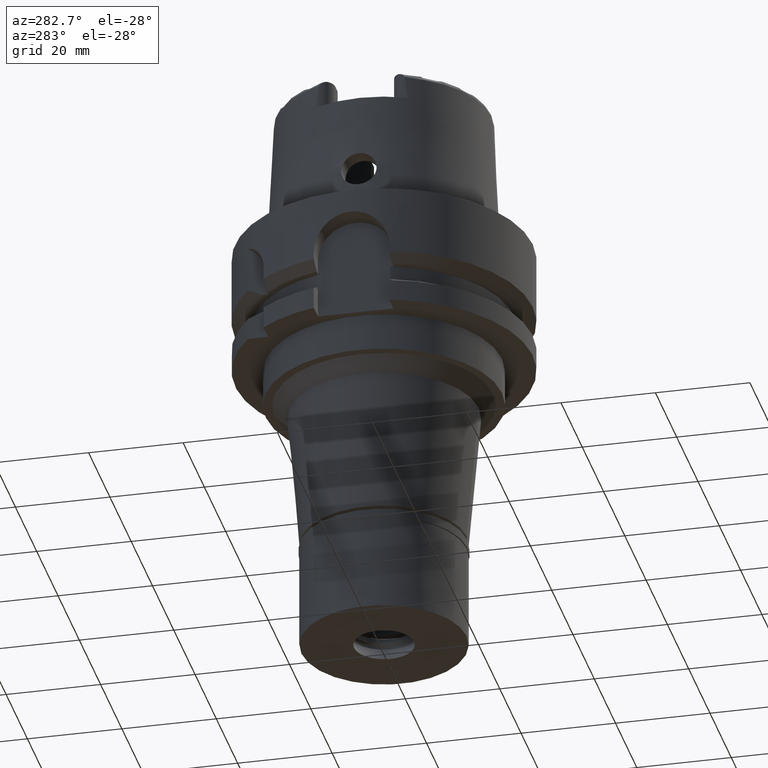
[diagram: clean part render]
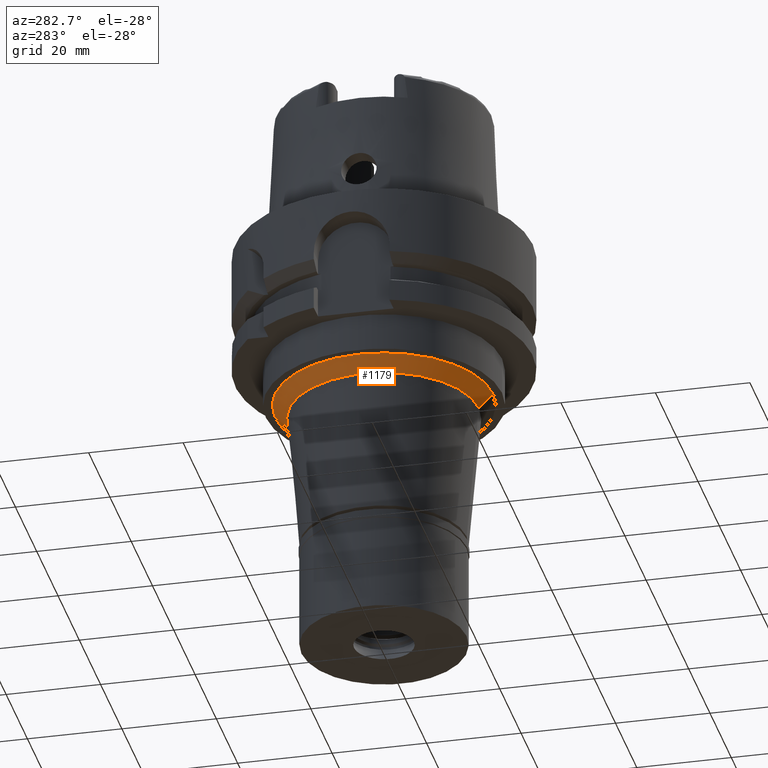
[diagram: same view with one face highlighted and labeled with its STEP entity id]
A machine part, auxiliary view. The second image highlights one B-rep face of the part: STEP entity #1179.
In plain terms, the highlighted conical surface has half-angle 45 deg.
Its self-contained STEP definition (entity closure, byte-faithful):
#329 = EDGE_CURVE ( 'NONE', #1192, #3920, #2561, .T. ) ;
#488 = EDGE_CURVE ( 'NONE', #3711, #540, #3921, .T. ) ;
#526 = DIRECTION ( 'NONE',  ( 0.0000000000000000000, 0.0000000000000000000, 1.000000000000000000 ) ) ;
#540 = VERTEX_POINT ( 'NONE', #4066 ) ;
#569 = CARTESIAN_POINT ( 'NONE',  ( 0.0000000000000000000, -23.09841330671999771, -34.00000000000000000 ) ) ;
#1054 = DIRECTION ( 'NONE',  ( 0.0000000000000000000, -1.000000000000000000, 0.0000000000000000000 ) ) ;
#1177 = EDGE_CURVE ( 'NONE', #540, #3920, #2424, .T. ) ;
#1179 = ADVANCED_FACE ( 'NONE', ( #4137 ), #1680, .T. ) ;
#1192 = VERTEX_POINT ( 'NONE', #2344 ) ;
#1353 = ORIENTED_EDGE ( 'NONE', *, *, #488, .F. ) ;
#1606 = AXIS2_PLACEMENT_3D ( 'NONE', #4461, #526, #3579 ) ;
#1680 = CONICAL_SURFACE ( 'NONE', #1606, 21.59841330672000126, 0.7853981633972997312 ) ;
#1832 = DIRECTION ( 'NONE',  ( 0.0000000000000000000, 0.0000000000000000000, -1.000000000000000000 ) ) ;
#2159 = EDGE_CURVE ( 'NONE', #3711, #1192, #2423, .T. ) ;
#2344 = CARTESIAN_POINT ( 'NONE',  ( 0.0000000000000000000, 23.09841330671999771, -34.00000000000000000 ) ) ;
#2423 = CIRCLE ( 'NONE', #3421, 23.09841330671999771 ) ;
#2424 = CIRCLE ( 'NONE', #5074, 20.09841330671999771 ) ;
#2561 = LINE ( 'NONE', #3483, #5508 ) ;
#2638 = DIRECTION ( 'NONE',  ( 0.0000000000000000000, 0.0000000000000000000, -1.000000000000000000 ) ) ;
#2663 = CARTESIAN_POINT ( 'NONE',  ( 0.0000000000000000000, 0.0000000000000000000, -34.00000000000000000 ) ) ;
#3028 = EDGE_LOOP ( 'NONE', ( #3926, #1353, #5124, #5109 ) ) ;
#3087 = DIRECTION ( 'NONE',  ( 0.0000000000000000000, -0.7071067811865975328, -0.7071067811864976127 ) ) ;
#3370 = CARTESIAN_POINT ( 'NONE',  ( 0.0000000000000000000, -23.09841330671999771, -34.00000000000000000 ) ) ;
#3421 = AXIS2_PLACEMENT_3D ( 'NONE', #2663, #2638, #3471 ) ;
#3471 = DIRECTION ( 'NONE',  ( 0.0000000000000000000, -1.000000000000000000, 0.0000000000000000000 ) ) ;
#3483 = CARTESIAN_POINT ( 'NONE',  ( 0.0000000000000000000, 23.09841330671999771, -34.00000000000000000 ) ) ;
#3579 = DIRECTION ( 'NONE',  ( 0.0000000000000000000, 1.000000000000000000, 0.0000000000000000000 ) ) ;
#3711 = VERTEX_POINT ( 'NONE', #3370 ) ;
#3920 = VERTEX_POINT ( 'NONE', #4334 ) ;
#3921 = LINE ( 'NONE', #569, #4077 ) ;
#3926 = ORIENTED_EDGE ( 'NONE', *, *, #1177, .F. ) ;
#4066 = CARTESIAN_POINT ( 'NONE',  ( 0.0000000000000000000, -20.09841330671999771, -37.00000000000000000 ) ) ;
#4077 = VECTOR ( 'NONE', #5397, 1000.000000000000114 ) ;
#4137 = FACE_OUTER_BOUND ( 'NONE', #3028, .T. ) ;
#4334 = CARTESIAN_POINT ( 'NONE',  ( 0.0000000000000000000, 20.09841330671999771, -37.00000000000000000 ) ) ;
#4461 = CARTESIAN_POINT ( 'NONE',  ( 0.0000000000000000000, 0.0000000000000000000, -35.50000000000000000 ) ) ;
#5074 = AXIS2_PLACEMENT_3D ( 'NONE', #5347, #1832, #1054 ) ;
#5109 = ORIENTED_EDGE ( 'NONE', *, *, #329, .T. ) ;
#5124 = ORIENTED_EDGE ( 'NONE', *, *, #2159, .T. ) ;
#5347 = CARTESIAN_POINT ( 'NONE',  ( 0.0000000000000000000, 0.0000000000000000000, -37.00000000000000000 ) ) ;
#5397 = DIRECTION ( 'NONE',  ( 0.0000000000000000000, 0.7071067811865975328, -0.7071067811864976127 ) ) ;
#5508 = VECTOR ( 'NONE', #3087, 1000.000000000000114 ) ;